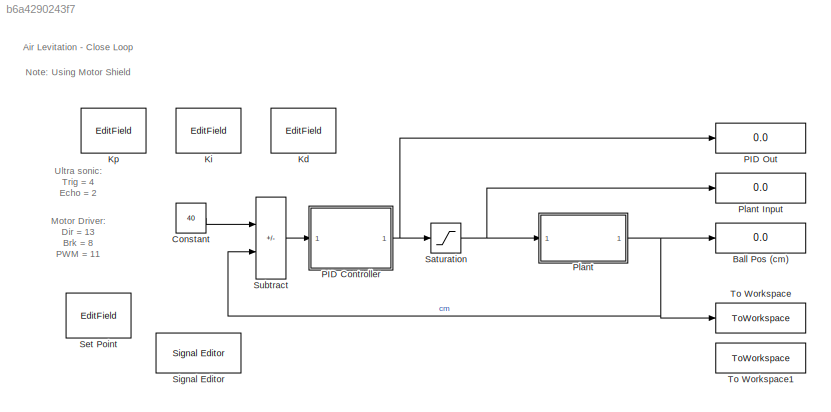
MODEL slx_b6a4290243f7
KIND model
CONFIG AbsTol = auto
CONFIG EnableMultiTasking = on
CONFIG FixedStep = 0.002
CONFIG MaxStep = auto
CONFIG MinStep = auto
CONFIG RelTol = 1e-3
CONFIG SampleTimeConstraint = Unconstrained
CONFIG SolverName = FixedStepDiscrete
CONFIG StartTime = 0.0
CONFIG StopTime = 10
BLOCK [Display] Ball Pos (cm)
  Decimation = 1
BLOCK [Constant] Constant
  Value = 40
BLOCK [EditField] Kd
  Alignment = Center
  LabelPosition = Hide
  ShowInitialText = on
BLOCK [EditField] Ki
  Alignment = Center
  LabelPosition = Hide
  ShowInitialText = on
BLOCK [EditField] Kp
  Alignment = Center
  LabelPosition = Hide
  ShowInitialText = on
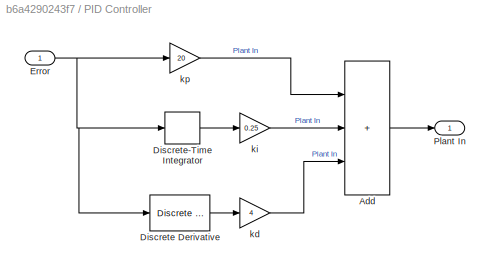
BLOCK [SubSystem] PID Controller
BLOCK [Sum] PID Controller/Add
  IconShape = rectangular
  Inputs = +++
BLOCK [Reference] PID Controller/Discrete Derivative  REF=simulink/Discrete/Discrete Derivative
  SourceBlock = simulink/Discrete/Discrete Derivative
  SourceType = Discrete Derivative
BLOCK [DiscreteIntegrator] PID Controller/Discrete-Time Integrator
  ICPrevOutput = DiscIntNeverNeededParam
  ICPrevScaledInput = DiscIntNeverNeededParam
  InitialConditionSetting = Auto
  SampleTime = -1
BLOCK [Inport] PID Controller/Error
BLOCK [Outport] PID Controller/Plant In
BLOCK [Gain] PID Controller/kd
  Gain = 4
BLOCK [Gain] PID Controller/ki
  Gain = 0.25
BLOCK [Gain] PID Controller/kp
  Gain = 20
BLOCK [Display] PID Out
  Decimation = 1
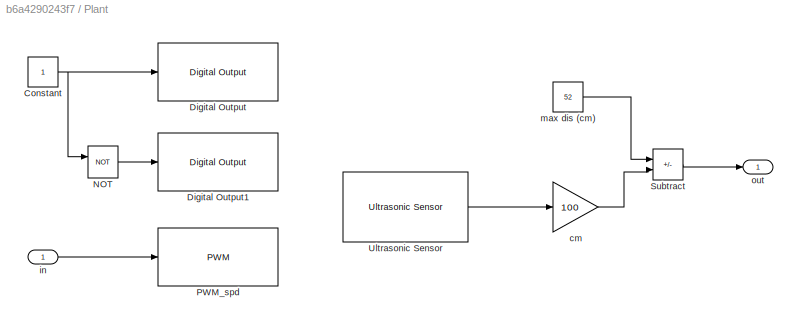
BLOCK [SubSystem] Plant
BLOCK [Display] Plant Input
  Decimation = 1
BLOCK [Constant] Plant/Constant
BLOCK [Reference] Plant/Digital Output  REF=arduinolib/Digital Output
  SourceBlock = arduinolib/Digital Output
  SourceType = Arduino Digital Output
BLOCK [Reference] Plant/Digital Output1  REF=arduinolib/Digital Output
  SourceBlock = arduinolib/Digital Output
  SourceType = Arduino Digital Output
BLOCK [Logic] Plant/NOT
  AllPortsSameDT = off
  IconShape = distinctive
  Operator = NOT
  OutDataTypeStr = boolean
BLOCK [Reference] Plant/PWM_spd  REF=arduinolib/PWM
  SourceBlock = arduinolib/PWM
  SourceType = Arduino PWM
BLOCK [Sum] Plant/Subtract
  IconShape = rectangular
  Inputs = +-
BLOCK [Reference] Plant/Ultrasonic Sensor  REF=arduinosensorlib/Ultrasonic Sensor
  SourceBlock = arduinosensorlib/Ultrasonic Sensor
  SourceType = Arduino Ultrasonic Sensor
BLOCK [Gain] Plant/cm
  Gain = 100
BLOCK [Inport] Plant/in
BLOCK [Constant] Plant/max dis (cm)
  Value = 52
BLOCK [Outport] Plant/out
BLOCK [Saturate] Saturation
  LowerLimit = 80
  UpperLimit = 255
BLOCK [EditField] Set Point
  Alignment = Center
  LabelPosition = Hide
  ShowInitialText = on
BLOCK [Reference] Signal Editor  REF=SignalEditorBlockLib/Signal Editor
  Commented = on
  LibrarySourceBlock = simulink/Sources/Signal Editor
  SourceBlock = SignalEditorBlockLib/Signal Editor
  SourceType = SignalEditor
  UserDataPersistent = on
BLOCK [Sum] Subtract
  IconShape = rectangular
  Inputs = +-
BLOCK [ToWorkspace] To Workspace
  FixptAsFi = on
  MaxDataPoints = inf
  SampleTime = -1
  Save2DSignal = 2-D array (concatenate along first dimension)
  VariableName = dis_cm
BLOCK [ToWorkspace] To Workspace1
  FixptAsFi = on
  MaxDataPoints = inf
  SampleTime = -1
  Save2DSignal = 2-D array (concatenate along first dimension)
  VariableName = step_cm
ANNOTATION (root): Motor Driver: Dir = 13 Brk = 8 PWM = 11
ANNOTATION (root): Ultra sonic : Trig = 4 Echo = 2
ANNOTATION (root): Air Levitation - Close Loop
ANNOTATION (root): Note: Using Motor Shield
LINE Constant:1 -> Subtract:1
LINE PID Controller/Add:1 -> PID Controller/Plant In:1
LINE PID Controller/Discrete Derivative:1 -> PID Controller/kd:1
LINE PID Controller/Discrete-Time Integrator:1 -> PID Controller/ki:1
NET PID Controller/Error:1 -> PID Controller/Discrete Derivative:1, PID Controller/Discrete-Time Integrator:1, PID Controller/kp:1
LINE PID Controller/kd:1 -> PID Controller/Add:3
LINE PID Controller/ki:1 -> PID Controller/Add:2
LINE PID Controller/kp:1 -> PID Controller/Add:1
NET PID Controller:1 -> PID Out:1, Saturation:1
NET Plant/Constant:1 -> Plant/Digital Output:1, Plant/NOT:1
LINE Plant/NOT:1 -> Plant/Digital Output1:1
LINE Plant/Subtract:1 -> Plant/out:1
LINE Plant/Ultrasonic Sensor:1 -> Plant/cm:1
LINE Plant/cm:1 -> Plant/Subtract:2
LINE Plant/in:1 -> Plant/PWM_spd:1
LINE Plant/max dis (cm):1 -> Plant/Subtract:1
NET Plant:1 -> Ball Pos (cm):1, Subtract:2, To Workspace:1
NET Saturation:1 -> Plant Input:1, Plant:1
LINE Subtract:1 -> PID Controller:1
note: NET lines group one-source signal fan-out (src -> all destinations, sorted); 1:1 wires keep LINE
